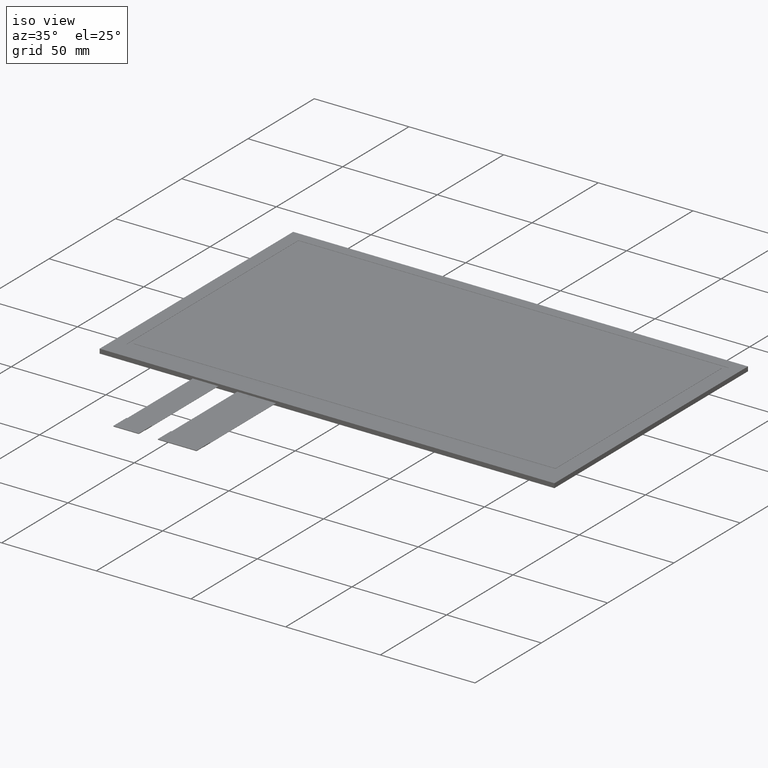
[diagram: clean part render]
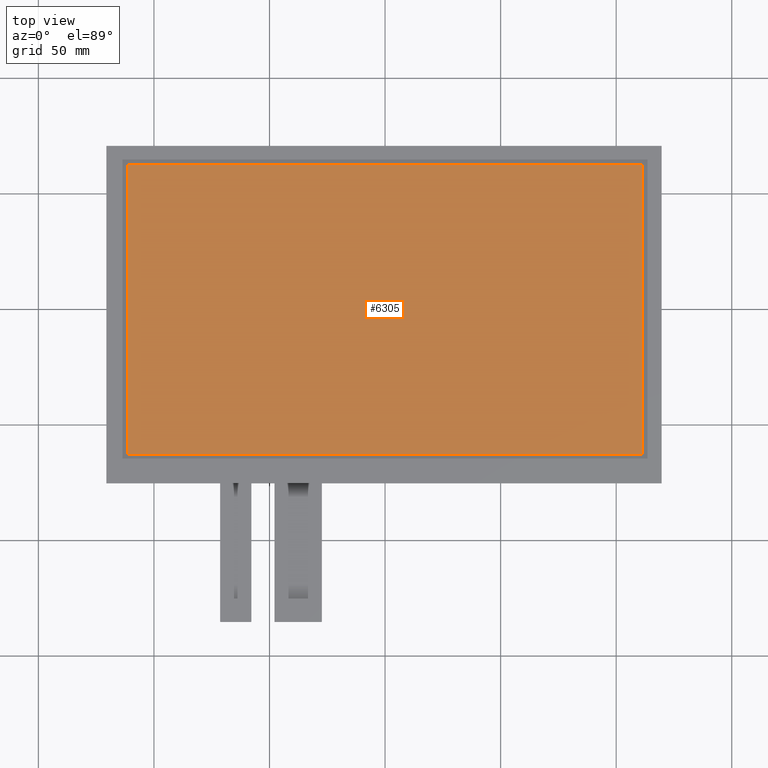
[diagram: tour spotlight — one face highlighted and labeled with its STEP entity id]
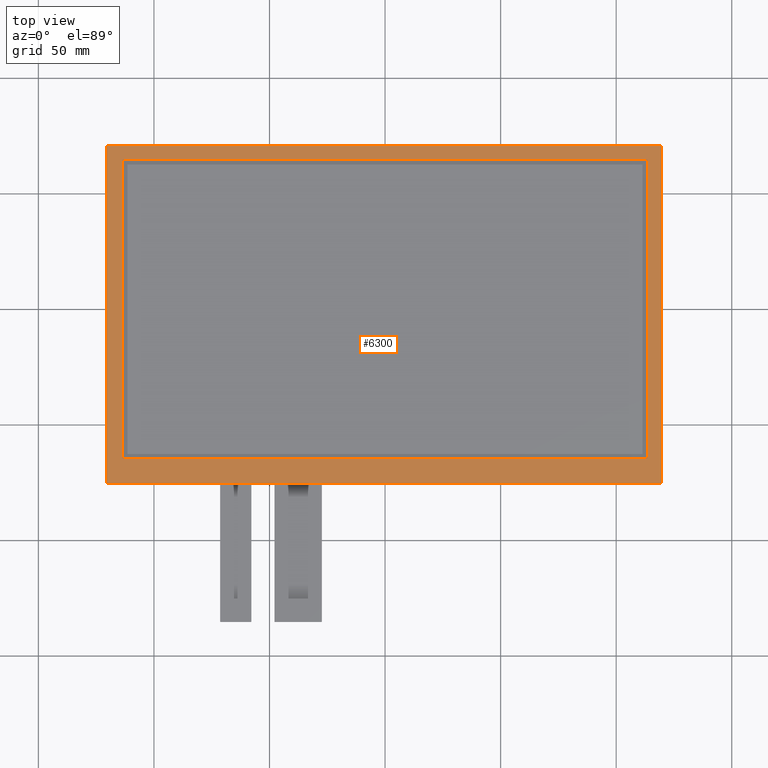
[diagram: tour spotlight — one face highlighted and labeled with its STEP entity id]
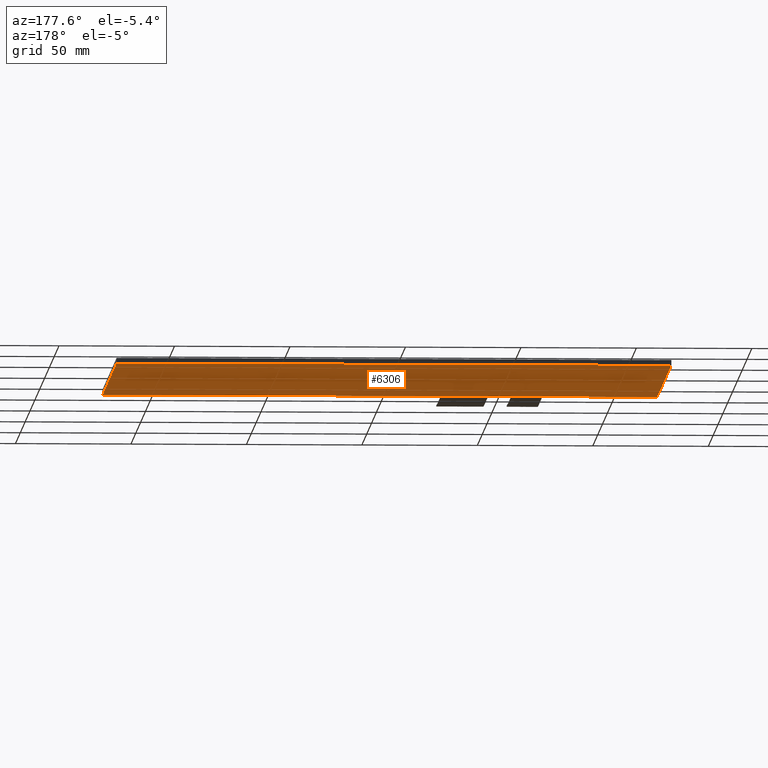
[diagram: tour spotlight — one face highlighted and labeled with its STEP entity id]
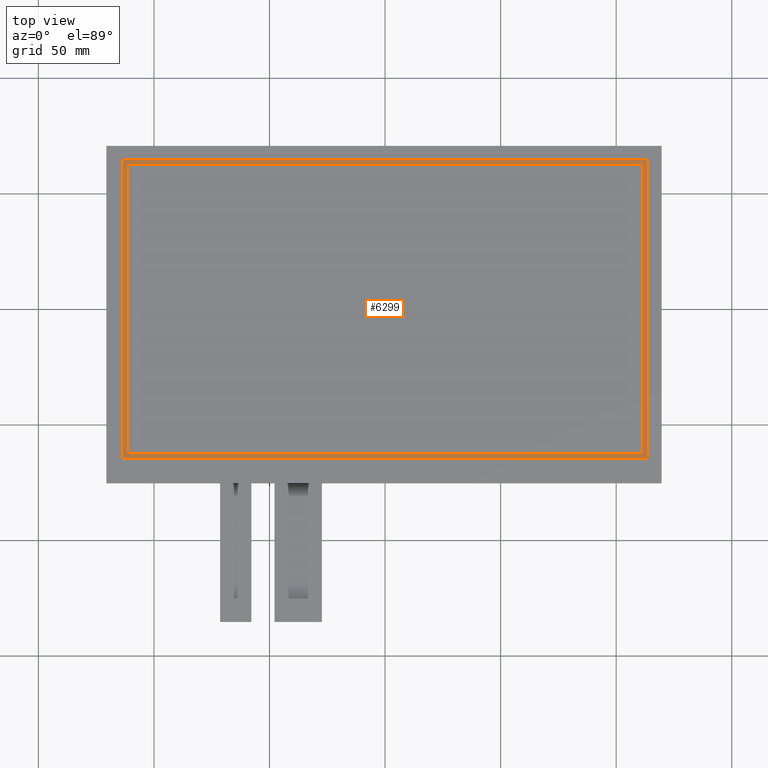
[diagram: tour spotlight — one face highlighted and labeled with its STEP entity id]
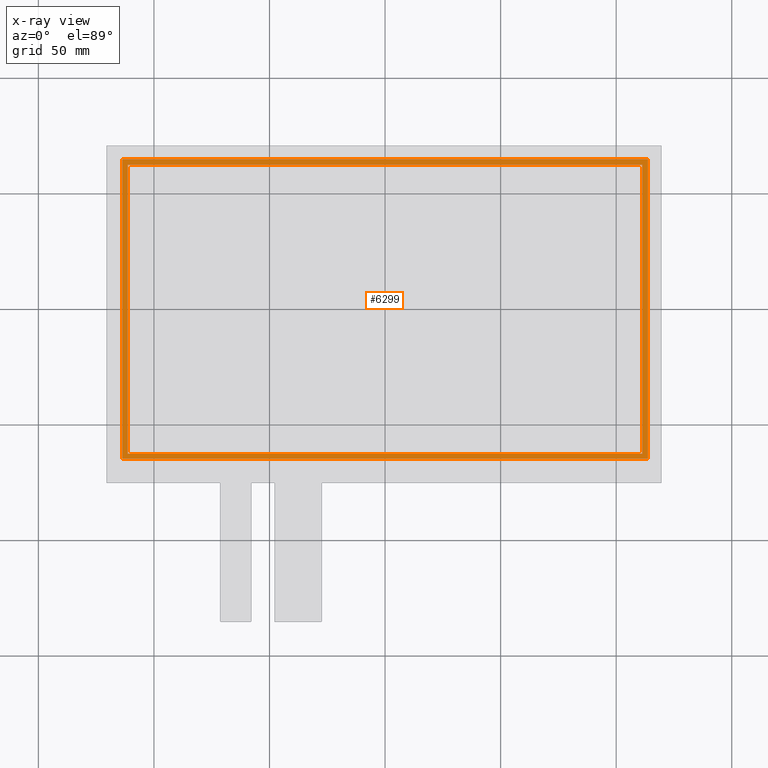
[diagram: x-ray of the same camera — body ghosted, this tour face saturated]
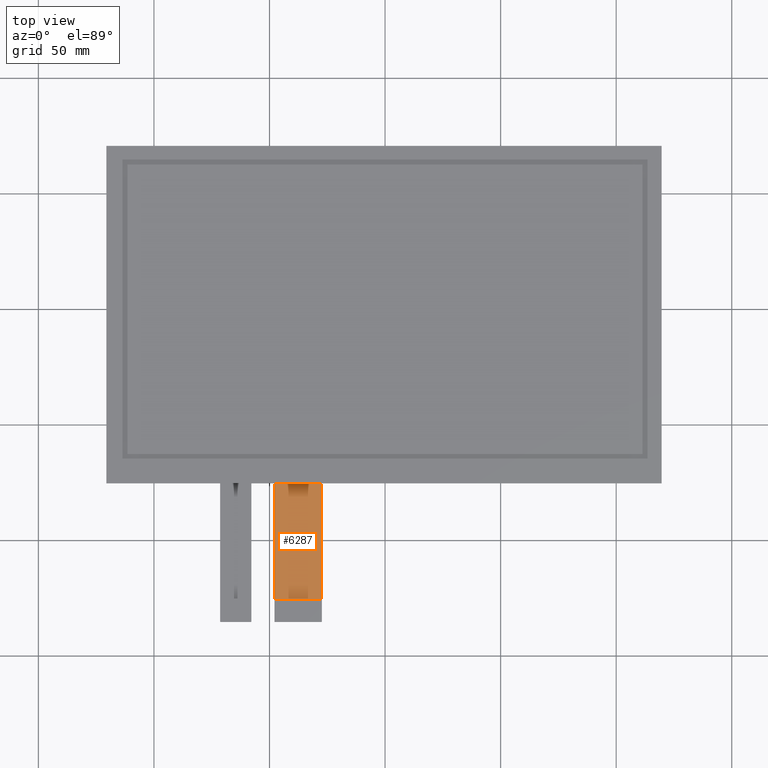
[diagram: tour spotlight — one face highlighted and labeled with its STEP entity id]
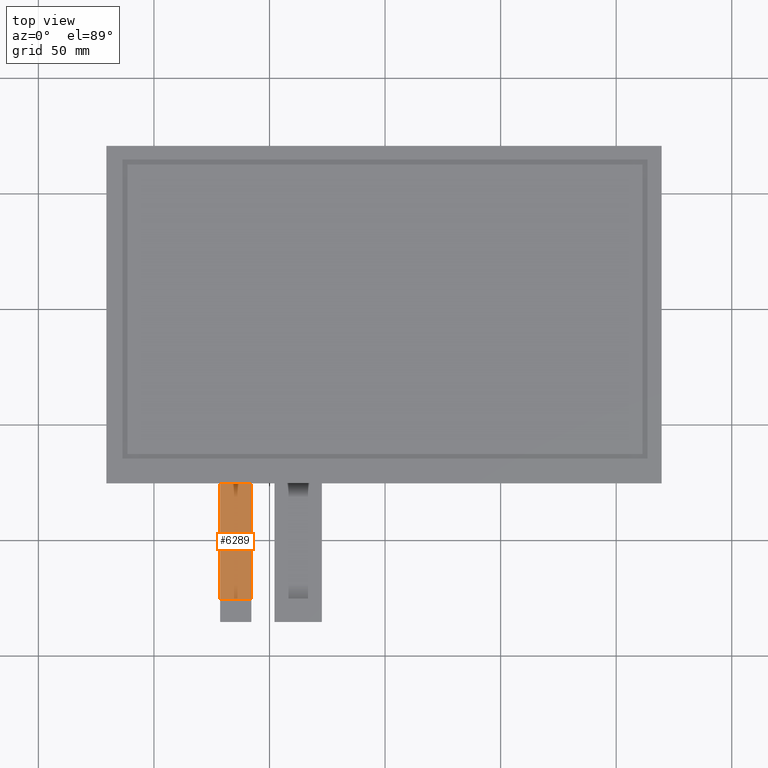
[diagram: tour spotlight — one face highlighted and labeled with its STEP entity id]
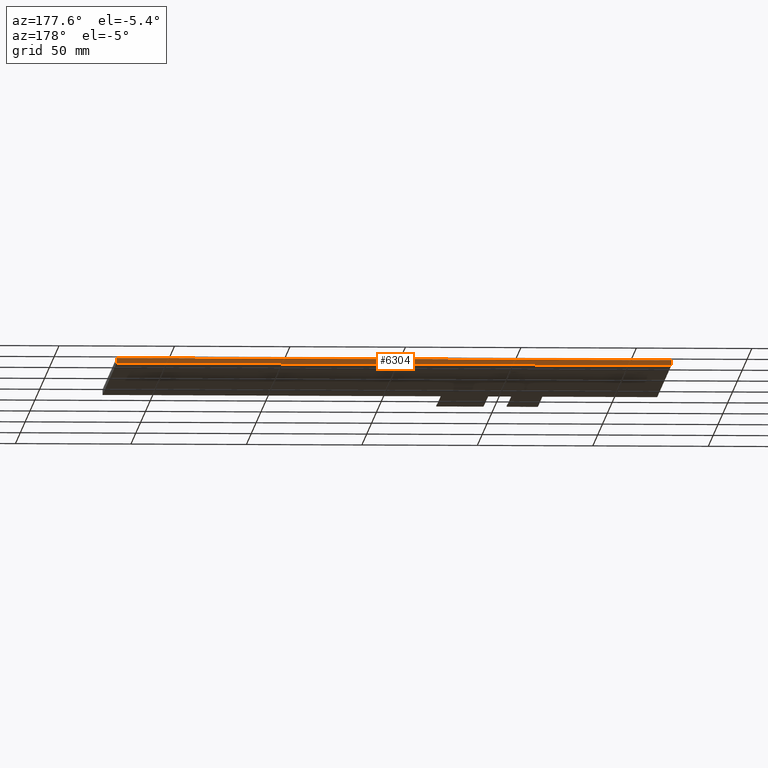
[diagram: tour spotlight — one face highlighted and labeled with its STEP entity id]
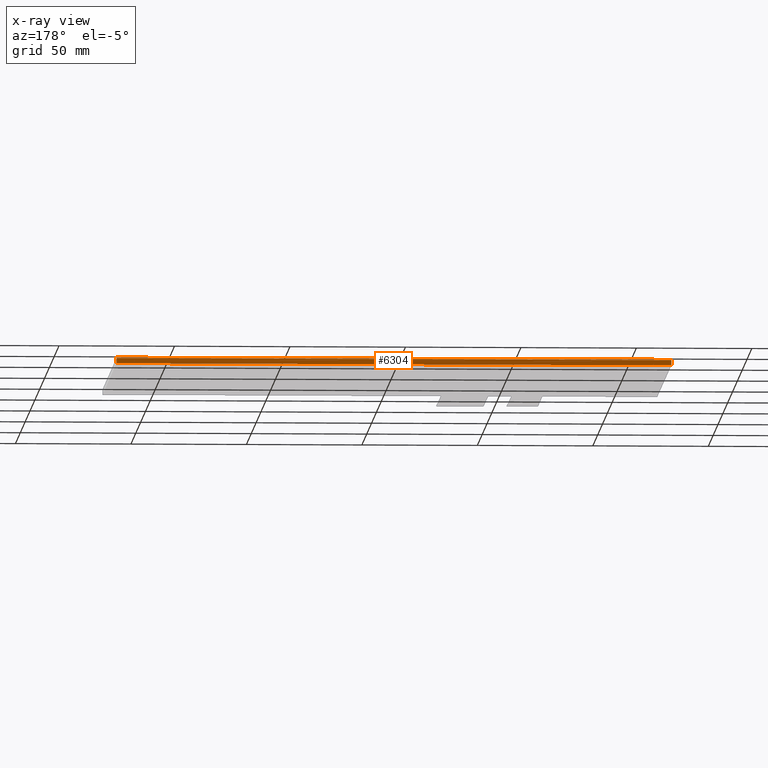
[diagram: x-ray of the same camera — body ghosted, this tour face saturated]
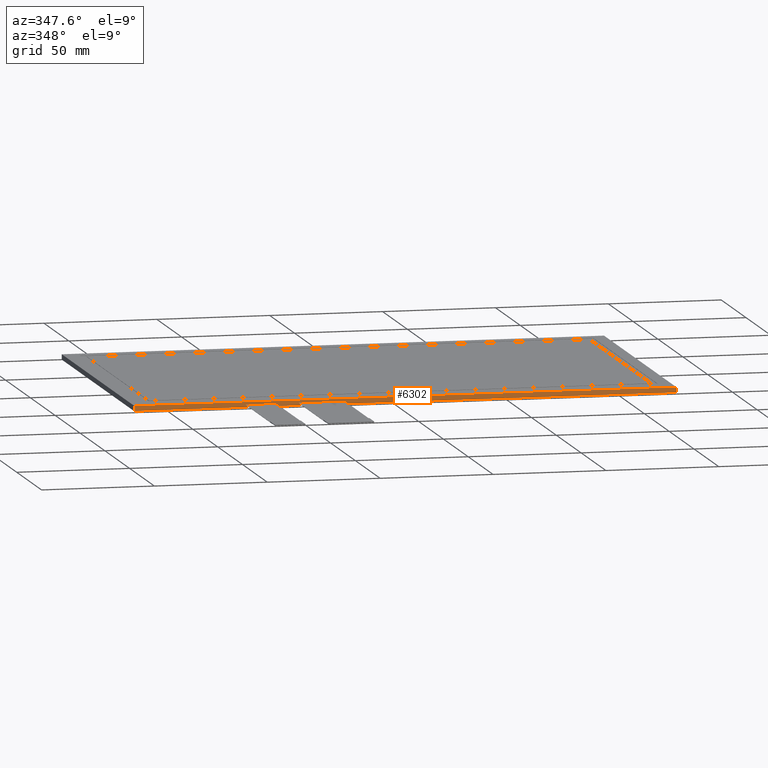
[diagram: tour spotlight — one face highlighted and labeled with its STEP entity id]
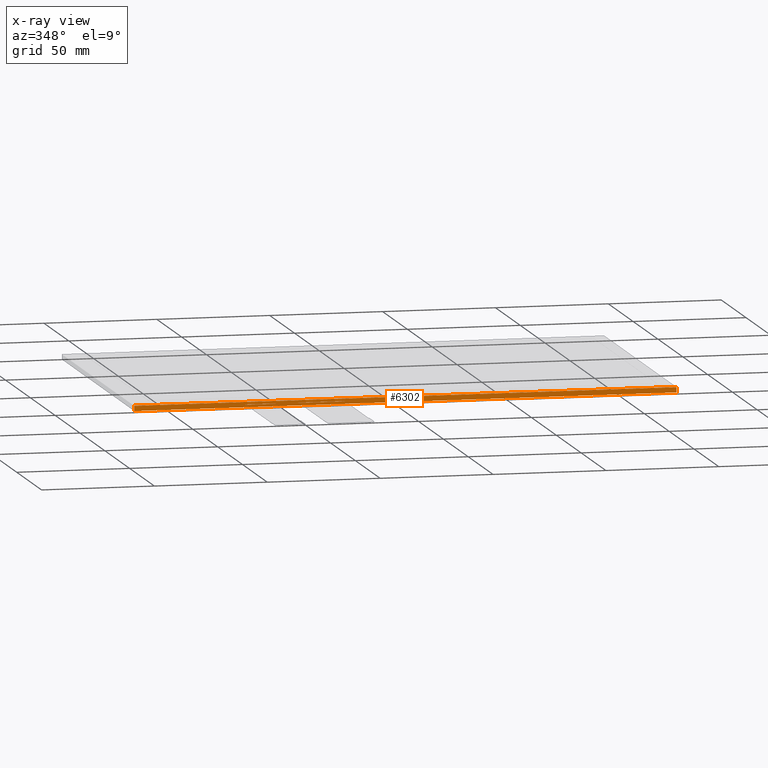
[diagram: x-ray of the same camera — body ghosted, this tour face saturated]
A machine part: a face-by-face anatomy tour. The part has 302 B-rep faces; the first image is the clean iso view, then the 8 largest visible faces are spotlighted one at a time (largest first), each with its STEP entity span.

Face 1 — top view, entity #6305. In plain terms, the highlighted planar face has unit normal (0, 0, 1).
Definition (entity closure, byte-faithful):
#367=PLANE('',#6635);
#669=FACE_OUTER_BOUND('',#975,.T.);
#975=EDGE_LOOP('',(#5993,#5994,#5995,#5996));
#1821=LINE('',#9849,#2701);
#1825=LINE('',#9857,#2705);
#1828=LINE('',#9863,#2708);
#1831=LINE('',#9868,#2711);
#2701=VECTOR('',#8073,10.);
#2705=VECTOR('',#8079,10.);
#2708=VECTOR('',#8084,10.);
#2711=VECTOR('',#8089,10.);
#3313=VERTEX_POINT('',#9847);
#3314=VERTEX_POINT('',#9848);
#3317=VERTEX_POINT('',#9856);
#3319=VERTEX_POINT('',#9862);
#4189=EDGE_CURVE('',#3313,#3314,#1821,.T.);
#4193=EDGE_CURVE('',#3317,#3313,#1825,.T.);
#4196=EDGE_CURVE('',#3319,#3317,#1828,.T.);
#4199=EDGE_CURVE('',#3314,#3319,#1831,.T.);
#5993=ORIENTED_EDGE('',*,*,#4189,.T.);
#5994=ORIENTED_EDGE('',*,*,#4199,.T.);
#5995=ORIENTED_EDGE('',*,*,#4196,.T.);
#5996=ORIENTED_EDGE('',*,*,#4193,.T.);
#6305=ADVANCED_FACE('',(#669),#367,.T.);
#6635=AXIS2_PLACEMENT_3D('',#9920,#8135,#8136);
#8073=DIRECTION('',(1.,0.,0.));
#8079=DIRECTION('',(0.,-1.,0.));
#8084=DIRECTION('',(-1.,0.,0.));
#8089=DIRECTION('',(0.,1.,0.));
#8135=DIRECTION('center_axis',(0.,0.,1.));
#8136=DIRECTION('ref_axis',(1.,0.,0.));
#9847=CARTESIAN_POINT('',(-111.36,-62.64,0.));
#9848=CARTESIAN_POINT('',(111.36,-62.64,0.));
#9849=CARTESIAN_POINT('',(-55.91,-62.64,0.));
#9856=CARTESIAN_POINT('',(-111.36,62.64,0.));
#9857=CARTESIAN_POINT('',(-111.36,30.15,0.));
#9862=CARTESIAN_POINT('',(111.36,62.64,0.));
#9863=CARTESIAN_POINT('',(55.45,62.64,0.));
#9868=CARTESIAN_POINT('',(111.36,-32.49,0.));
#9920=CARTESIAN_POINT('Origin',(-0.460000000000029,-2.34,0.));

Face 2 — top view, entity #6300. In plain terms, the highlighted planar face has unit normal (0, 0, 1).
Definition (entity closure, byte-faithful):
#68=FACE_BOUND('',#968,.T.);
#362=PLANE('',#6630);
#664=FACE_OUTER_BOUND('',#967,.T.);
#967=EDGE_LOOP('',(#5961,#5962,#5963,#5964));
#968=EDGE_LOOP('',(#5965,#5966,#5967,#5968));
#1833=LINE('',#9873,#2713);
#1837=LINE('',#9881,#2717);
#1840=LINE('',#9887,#2720);
#1843=LINE('',#9892,#2723);
#1845=LINE('',#9898,#2725);
#1846=LINE('',#9900,#2726);
#1847=LINE('',#9902,#2727);
#1848=LINE('',#9903,#2728);
#2713=VECTOR('',#8093,10.);
#2717=VECTOR('',#8099,10.);
#2720=VECTOR('',#8104,10.);
#2723=VECTOR('',#8109,10.);
#2725=VECTOR('',#8115,10.);
#2726=VECTOR('',#8116,10.);
#2727=VECTOR('',#8117,10.);
#2728=VECTOR('',#8118,10.);
#3321=VERTEX_POINT('',#9871);
#3322=VERTEX_POINT('',#9872);
#3325=VERTEX_POINT('',#9880);
#3327=VERTEX_POINT('',#9886);
#3329=VERTEX_POINT('',#9896);
#3330=VERTEX_POINT('',#9897);
#3331=VERTEX_POINT('',#9899);
#3332=VERTEX_POINT('',#9901);
#4201=EDGE_CURVE('',#3321,#3322,#1833,.T.);
#4205=EDGE_CURVE('',#3325,#3321,#1837,.T.);
#4208=EDGE_CURVE('',#3327,#3325,#1840,.T.);
#4211=EDGE_CURVE('',#3322,#3327,#1843,.T.);
#4213=EDGE_CURVE('',#3329,#3330,#1845,.T.);
#4214=EDGE_CURVE('',#3330,#3331,#1846,.T.);
#4215=EDGE_CURVE('',#3331,#3332,#1847,.T.);
#4216=EDGE_CURVE('',#3332,#3329,#1848,.T.);
#5961=ORIENTED_EDGE('',*,*,#4213,.T.);
#5962=ORIENTED_EDGE('',*,*,#4214,.T.);
#5963=ORIENTED_EDGE('',*,*,#4215,.T.);
#5964=ORIENTED_EDGE('',*,*,#4216,.T.);
#5965=ORIENTED_EDGE('',*,*,#4201,.T.);
#5966=ORIENTED_EDGE('',*,*,#4211,.T.);
#5967=ORIENTED_EDGE('',*,*,#4208,.T.);
#5968=ORIENTED_EDGE('',*,*,#4205,.T.);
#6300=ADVANCED_FACE('',(#664,#68),#362,.T.);
#6630=AXIS2_PLACEMENT_3D('',#9895,#8113,#8114);
#8093=DIRECTION('',(-1.371704123089E-16,1.,0.));
#8099=DIRECTION('',(-1.,-1.56273145016297E-16,0.));
#8104=DIRECTION('',(1.371704123089E-16,-1.,0.));
#8109=DIRECTION('',(1.,0.,0.));
#8113=DIRECTION('center_axis',(0.,0.,1.));
#8114=DIRECTION('ref_axis',(1.,0.,0.));
#8115=DIRECTION('',(-1.,0.,0.));
#8116=DIRECTION('',(2.433365533425E-16,-1.,0.));
#8117=DIRECTION('',(1.,1.47906481215674E-16,0.));
#8118=DIRECTION('',(0.,1.,0.));
#9871=CARTESIAN_POINT('',(-113.66,-64.74,0.));
#9872=CARTESIAN_POINT('',(-113.66,64.76,0.));
#9873=CARTESIAN_POINT('',(-113.66,-33.54,0.));
#9880=CARTESIAN_POINT('',(113.68,-64.74,0.));
#9881=CARTESIAN_POINT('',(56.61,-64.74,0.));
#9886=CARTESIAN_POINT('',(113.68,64.76,0.));
#9887=CARTESIAN_POINT('',(113.68,31.21,0.));
#9892=CARTESIAN_POINT('',(-57.06,64.76,0.));
#9895=CARTESIAN_POINT('Origin',(-0.460000000000029,-2.34,0.));
#9896=CARTESIAN_POINT('',(119.64,70.66,0.));
#9897=CARTESIAN_POINT('',(-120.56,70.66,0.));
#9898=CARTESIAN_POINT('',(119.64,70.66,0.));
#9899=CARTESIAN_POINT('',(-120.56,-75.34,0.));
#9900=CARTESIAN_POINT('',(-120.56,70.66,0.));
#9901=CARTESIAN_POINT('',(119.64,-75.34,0.));
#9902=CARTESIAN_POINT('',(-120.56,-75.34,0.));
#9903=CARTESIAN_POINT('',(119.64,-75.34,0.));

Face 3 — auxiliary view, entity #6306. In plain terms, the highlighted planar face has unit normal (0, 0, -1).
Definition (entity closure, byte-faithful):
#368=PLANE('',#6636);
#670=FACE_OUTER_BOUND('',#976,.T.);
#976=EDGE_LOOP('',(#5997,#5998,#5999,#6000));
#1850=LINE('',#9908,#2730);
#1852=LINE('',#9912,#2732);
#1854=LINE('',#9916,#2734);
#1856=LINE('',#9919,#2736);
#2730=VECTOR('',#8122,10.);
#2732=VECTOR('',#8126,10.);
#2734=VECTOR('',#8130,10.);
#2736=VECTOR('',#8134,10.);
#3333=VERTEX_POINT('',#9905);
#3334=VERTEX_POINT('',#9907);
#3335=VERTEX_POINT('',#9911);
#3336=VERTEX_POINT('',#9915);
#4218=EDGE_CURVE('',#3334,#3333,#1850,.T.);
#4220=EDGE_CURVE('',#3335,#3334,#1852,.T.);
#4222=EDGE_CURVE('',#3336,#3335,#1854,.T.);
#4224=EDGE_CURVE('',#3333,#3336,#1856,.T.);
#5997=ORIENTED_EDGE('',*,*,#4224,.T.);
#5998=ORIENTED_EDGE('',*,*,#4222,.T.);
#5999=ORIENTED_EDGE('',*,*,#4220,.T.);
#6000=ORIENTED_EDGE('',*,*,#4218,.T.);
#6306=ADVANCED_FACE('',(#670),#368,.T.);
#6636=AXIS2_PLACEMENT_3D('',#9921,#8137,#8138);
#8122=DIRECTION('',(-2.433365533425E-16,1.,0.));
#8126=DIRECTION('',(-1.,-1.47906481215674E-16,0.));
#8130=DIRECTION('',(0.,-1.,0.));
#8134=DIRECTION('',(1.,0.,0.));
#8137=DIRECTION('center_axis',(0.,0.,-1.));
#8138=DIRECTION('ref_axis',(-1.,0.,0.));
#9905=CARTESIAN_POINT('',(-120.56,70.66,-2.35));
#9907=CARTESIAN_POINT('',(-120.56,-75.34,-2.35));
#9908=CARTESIAN_POINT('',(-120.56,70.66,-2.35));
#9911=CARTESIAN_POINT('',(119.64,-75.34,-2.35));
#9912=CARTESIAN_POINT('',(-120.56,-75.34,-2.35));
#9915=CARTESIAN_POINT('',(119.64,70.66,-2.35));
#9916=CARTESIAN_POINT('',(119.64,-75.34,-2.35));
#9919=CARTESIAN_POINT('',(119.64,70.66,-2.35));
#9921=CARTESIAN_POINT('Origin',(-0.460000000000029,-2.34000000000001,-2.35));

Face 4 — top view, entity #6299. An x-ray twin of the same camera follows (body ghosted, this face saturated) — the face is partly hidden behind the body. In plain terms, the highlighted planar face has unit normal (0, 0, -1).
Definition (entity closure, byte-faithful):
#67=FACE_BOUND('',#966,.T.);
#361=PLANE('',#6629);
#663=FACE_OUTER_BOUND('',#965,.T.);
#965=EDGE_LOOP('',(#5953,#5954,#5955,#5956));
#966=EDGE_LOOP('',(#5957,#5958,#5959,#5960));
#1823=LINE('',#9853,#2703);
#1827=LINE('',#9860,#2707);
#1830=LINE('',#9866,#2710);
#1832=LINE('',#9869,#2712);
#1835=LINE('',#9877,#2715);
#1839=LINE('',#9884,#2719);
#1842=LINE('',#9890,#2722);
#1844=LINE('',#9893,#2724);
#2703=VECTOR('',#8075,10.);
#2707=VECTOR('',#8081,10.);
#2710=VECTOR('',#8086,10.);
#2712=VECTOR('',#8090,10.);
#2715=VECTOR('',#8095,10.);
#2719=VECTOR('',#8101,10.);
#2722=VECTOR('',#8106,10.);
#2724=VECTOR('',#8110,10.);
#3315=VERTEX_POINT('',#9850);
#3316=VERTEX_POINT('',#9852);
#3318=VERTEX_POINT('',#9858);
#3320=VERTEX_POINT('',#9864);
#3323=VERTEX_POINT('',#9874);
#3324=VERTEX_POINT('',#9876);
#3326=VERTEX_POINT('',#9882);
#3328=VERTEX_POINT('',#9888);
#4191=EDGE_CURVE('',#3315,#3316,#1823,.T.);
#4195=EDGE_CURVE('',#3318,#3315,#1827,.T.);
#4198=EDGE_CURVE('',#3320,#3318,#1830,.T.);
#4200=EDGE_CURVE('',#3316,#3320,#1832,.T.);
#4203=EDGE_CURVE('',#3323,#3324,#1835,.T.);
#4207=EDGE_CURVE('',#3326,#3323,#1839,.T.);
#4210=EDGE_CURVE('',#3328,#3326,#1842,.T.);
#4212=EDGE_CURVE('',#3324,#3328,#1844,.T.);
#5953=ORIENTED_EDGE('',*,*,#4212,.F.);
#5954=ORIENTED_EDGE('',*,*,#4203,.F.);
#5955=ORIENTED_EDGE('',*,*,#4207,.F.);
#5956=ORIENTED_EDGE('',*,*,#4210,.F.);
#5957=ORIENTED_EDGE('',*,*,#4200,.F.);
#5958=ORIENTED_EDGE('',*,*,#4191,.F.);
#5959=ORIENTED_EDGE('',*,*,#4195,.F.);
#5960=ORIENTED_EDGE('',*,*,#4198,.F.);
#6299=ADVANCED_FACE('',(#663,#67),#361,.F.);
#6629=AXIS2_PLACEMENT_3D('',#9894,#8111,#8112);
#8075=DIRECTION('',(1.,0.,0.));
#8081=DIRECTION('',(0.,-1.,0.));
#8086=DIRECTION('',(-1.,0.,0.));
#8090=DIRECTION('',(0.,1.,0.));
#8095=DIRECTION('',(-1.371704123089E-16,1.,0.));
#8101=DIRECTION('',(-1.,-1.56273145016297E-16,0.));
#8106=DIRECTION('',(1.371704123089E-16,-1.,0.));
#8110=DIRECTION('',(1.,0.,0.));
#8111=DIRECTION('center_axis',(0.,0.,-1.));
#8112=DIRECTION('ref_axis',(-1.,0.,0.));
#9850=CARTESIAN_POINT('',(-111.36,-62.64,-0.1));
#9852=CARTESIAN_POINT('',(111.36,-62.64,-0.1));
#9853=CARTESIAN_POINT('',(111.36,-62.64,-0.1));
#9858=CARTESIAN_POINT('',(-111.36,62.64,-0.1));
#9860=CARTESIAN_POINT('',(-111.36,-62.64,-0.1));
#9864=CARTESIAN_POINT('',(111.36,62.64,-0.1));
#9866=CARTESIAN_POINT('',(-111.36,62.64,-0.1));
#9869=CARTESIAN_POINT('',(111.36,62.64,-0.1));
#9874=CARTESIAN_POINT('',(-113.66,-64.74,-0.1));
#9876=CARTESIAN_POINT('',(-113.66,64.76,-0.1));
#9877=CARTESIAN_POINT('',(-113.66,64.76,-0.1));
#9882=CARTESIAN_POINT('',(113.68,-64.74,-0.1));
#9884=CARTESIAN_POINT('',(-113.66,-64.74,-0.1));
#9888=CARTESIAN_POINT('',(113.68,64.76,-0.1));
#9890=CARTESIAN_POINT('',(113.68,-64.74,-0.1));
#9893=CARTESIAN_POINT('',(113.68,64.76,-0.1));
#9894=CARTESIAN_POINT('Origin',(0.00999999999995893,0.0100000000000033,
-0.1));

Face 5 — top view, entity #6287. In plain terms, the highlighted planar face has unit normal (0, 0, 1).
Definition (entity closure, byte-faithful):
#349=PLANE('',#6617);
#651=FACE_OUTER_BOUND('',#953,.T.);
#953=EDGE_LOOP('',(#5905,#5906,#5907,#5908));
#1272=LINE('',#8750,#2152);
#1810=LINE('',#9826,#2690);
#1813=LINE('',#9831,#2693);
#1817=LINE('',#9839,#2697);
#2152=VECTOR('',#6972,10.);
#2690=VECTOR('',#8044,10.);
#2693=VECTOR('',#8049,10.);
#2697=VECTOR('',#8061,10.);
#3039=VERTEX_POINT('',#8747);
#3040=VERTEX_POINT('',#8749);
#3310=VERTEX_POINT('',#9823);
#3311=VERTEX_POINT('',#9825);
#3640=EDGE_CURVE('',#3040,#3039,#1272,.T.);
#4178=EDGE_CURVE('',#3311,#3310,#1810,.T.);
#4181=EDGE_CURVE('',#3310,#3040,#1813,.T.);
#4185=EDGE_CURVE('',#3311,#3039,#1817,.T.);
#5905=ORIENTED_EDGE('',*,*,#4181,.T.);
#5906=ORIENTED_EDGE('',*,*,#3640,.T.);
#5907=ORIENTED_EDGE('',*,*,#4185,.F.);
#5908=ORIENTED_EDGE('',*,*,#4178,.T.);
#6287=ADVANCED_FACE('',(#651),#349,.T.);
#6617=AXIS2_PLACEMENT_3D('',#9838,#8059,#8060);
#6972=DIRECTION('',(-3.70074341541719E-16,1.,0.));
#8044=DIRECTION('',(1.48029736616688E-16,-1.,0.));
#8049=DIRECTION('',(1.,0.,0.));
#8059=DIRECTION('center_axis',(0.,0.,1.));
#8060=DIRECTION('ref_axis',(1.,0.,0.));
#8061=DIRECTION('',(1.,1.47906481215674E-16,0.));
#8747=CARTESIAN_POINT('',(-27.3599999999999,-75.34,-1.1));
#8749=CARTESIAN_POINT('',(-27.3599999999999,-125.34,-1.1));
#8750=CARTESIAN_POINT('',(-27.3599999999999,-135.34,-1.1));
#9823=CARTESIAN_POINT('',(-47.86,-125.34,-1.1));
#9825=CARTESIAN_POINT('',(-47.86,-75.34,-1.1));
#9826=CARTESIAN_POINT('',(-47.86,-75.34,-1.1));
#9831=CARTESIAN_POINT('',(-32.4849999999999,-125.34,-1.1));
#9838=CARTESIAN_POINT('Origin',(-37.6099999999999,-105.34,-1.1));
#9839=CARTESIAN_POINT('',(41.015,-75.34,-1.1));

Face 6 — top view, entity #6289. In plain terms, the highlighted planar face has unit normal (0, 0, 1).
Definition (entity closure, byte-faithful):
#351=PLANE('',#6619);
#653=FACE_OUTER_BOUND('',#955,.T.);
#955=EDGE_LOOP('',(#5913,#5914,#5915,#5916));
#1094=LINE('',#8385,#1974);
#1803=LINE('',#9812,#2683);
#1815=LINE('',#9835,#2695);
#1819=LINE('',#9843,#2699);
#1974=VECTOR('',#6774,10.);
#2683=VECTOR('',#8033,10.);
#2695=VECTOR('',#8055,10.);
#2699=VECTOR('',#8067,10.);
#2862=VERTEX_POINT('',#8382);
#2863=VERTEX_POINT('',#8384);
#3305=VERTEX_POINT('',#9809);
#3306=VERTEX_POINT('',#9811);
#3458=EDGE_CURVE('',#2863,#2862,#1094,.T.);
#4171=EDGE_CURVE('',#3306,#3305,#1803,.T.);
#4183=EDGE_CURVE('',#3305,#2863,#1815,.T.);
#4187=EDGE_CURVE('',#3306,#2862,#1819,.T.);
#5913=ORIENTED_EDGE('',*,*,#4183,.T.);
#5914=ORIENTED_EDGE('',*,*,#3458,.T.);
#5915=ORIENTED_EDGE('',*,*,#4187,.F.);
#5916=ORIENTED_EDGE('',*,*,#4171,.T.);
#6289=ADVANCED_FACE('',(#653),#351,.T.);
#6619=AXIS2_PLACEMENT_3D('',#9842,#8065,#8066);
#6774=DIRECTION('',(-1.48029736616688E-16,1.,0.));
#8033=DIRECTION('',(5.92118946466751E-16,-1.,0.));
#8055=DIRECTION('',(1.,0.,0.));
#8065=DIRECTION('center_axis',(0.,0.,1.));
#8066=DIRECTION('ref_axis',(1.,0.,0.));
#8067=DIRECTION('',(1.,1.47906481215674E-16,0.));
#8382=CARTESIAN_POINT('',(-57.8599999999999,-75.34,-1.1));
#8384=CARTESIAN_POINT('',(-57.8599999999999,-125.34,-1.1));
#8385=CARTESIAN_POINT('',(-57.8599999999999,-135.34,-1.1));
#9809=CARTESIAN_POINT('',(-71.36,-125.34,-1.1));
#9811=CARTESIAN_POINT('',(-71.36,-75.34,-1.1));
#9812=CARTESIAN_POINT('',(-71.36,-75.34,-1.1));
#9835=CARTESIAN_POINT('',(-61.2349999999999,-125.34,-1.1));
#9842=CARTESIAN_POINT('Origin',(-64.61,-105.34,-1.1));
#9843=CARTESIAN_POINT('',(27.515,-75.34,-1.1));

Face 7 — auxiliary view, entity #6304. An x-ray twin of the same camera follows (body ghosted, this face saturated) — the face is partly hidden behind the body. In plain terms, the highlighted planar face has unit normal (0, 1, 0).
Definition (entity closure, byte-faithful):
#366=PLANE('',#6634);
#668=FACE_OUTER_BOUND('',#974,.T.);
#974=EDGE_LOOP('',(#5989,#5990,#5991,#5992));
#1845=LINE('',#9898,#2725);
#1849=LINE('',#9906,#2729);
#1855=LINE('',#9917,#2735);
#1856=LINE('',#9919,#2736);
#2725=VECTOR('',#8115,10.);
#2729=VECTOR('',#8121,10.);
#2735=VECTOR('',#8131,10.);
#2736=VECTOR('',#8134,10.);
#3329=VERTEX_POINT('',#9896);
#3330=VERTEX_POINT('',#9897);
#3333=VERTEX_POINT('',#9905);
#3336=VERTEX_POINT('',#9915);
#4213=EDGE_CURVE('',#3329,#3330,#1845,.T.);
#4217=EDGE_CURVE('',#3330,#3333,#1849,.T.);
#4223=EDGE_CURVE('',#3329,#3336,#1855,.T.);
#4224=EDGE_CURVE('',#3333,#3336,#1856,.T.);
#5989=ORIENTED_EDGE('',*,*,#4213,.F.);
#5990=ORIENTED_EDGE('',*,*,#4223,.T.);
#5991=ORIENTED_EDGE('',*,*,#4224,.F.);
#5992=ORIENTED_EDGE('',*,*,#4217,.F.);
#6304=ADVANCED_FACE('',(#668),#366,.T.);
#6634=AXIS2_PLACEMENT_3D('',#9918,#8132,#8133);
#8115=DIRECTION('',(-1.,0.,0.));
#8121=DIRECTION('',(0.,0.,-1.));
#8131=DIRECTION('',(0.,0.,-1.));
#8132=DIRECTION('center_axis',(0.,1.,0.));
#8133=DIRECTION('ref_axis',(1.,0.,0.));
#8134=DIRECTION('',(1.,0.,0.));
#9896=CARTESIAN_POINT('',(119.64,70.66,0.));
#9897=CARTESIAN_POINT('',(-120.56,70.66,0.));
#9898=CARTESIAN_POINT('',(119.64,70.66,0.));
#9905=CARTESIAN_POINT('',(-120.56,70.66,-2.35));
#9906=CARTESIAN_POINT('',(-120.56,70.66,0.));
#9915=CARTESIAN_POINT('',(119.64,70.66,-2.35));
#9917=CARTESIAN_POINT('',(119.64,70.66,0.));
#9918=CARTESIAN_POINT('Origin',(-120.56,70.66,0.));
#9919=CARTESIAN_POINT('',(119.64,70.66,-2.35));

Face 8 — auxiliary view, entity #6302. An x-ray twin of the same camera follows (body ghosted, this face saturated) — the face is partly hidden behind the body. In plain terms, the highlighted planar face has unit normal (0, -1, 0).
Definition (entity closure, byte-faithful):
#69=FACE_BOUND('',#971,.T.);
#70=FACE_BOUND('',#972,.T.);
#364=PLANE('',#6632);
#666=FACE_OUTER_BOUND('',#970,.T.);
#970=EDGE_LOOP('',(#5973,#5974,#5975,#5976));
#971=EDGE_LOOP('',(#5977,#5978,#5979,#5980));
#972=EDGE_LOOP('',(#5981,#5982,#5983,#5984));
#1093=LINE('',#8383,#1973);
#1271=LINE('',#8748,#2151);
#1804=LINE('',#9814,#2684);
#1811=LINE('',#9828,#2691);
#1817=LINE('',#9839,#2697);
#1818=LINE('',#9841,#2698);
#1819=LINE('',#9843,#2699);
#1820=LINE('',#9845,#2700);
#1847=LINE('',#9902,#2727);
#1851=LINE('',#9909,#2731);
#1852=LINE('',#9912,#2732);
#1853=LINE('',#9913,#2733);
#1973=VECTOR('',#6773,10.);
#2151=VECTOR('',#6971,10.);
#2684=VECTOR('',#8034,10.);
#2691=VECTOR('',#8045,10.);
#2697=VECTOR('',#8061,10.);
#2698=VECTOR('',#8064,10.);
#2699=VECTOR('',#8067,10.);
#2700=VECTOR('',#8070,10.);
#2727=VECTOR('',#8117,10.);
#2731=VECTOR('',#8123,10.);
#2732=VECTOR('',#8126,10.);
#2733=VECTOR('',#8127,10.);
#2861=VERTEX_POINT('',#8380);
#2862=VERTEX_POINT('',#8382);
#3038=VERTEX_POINT('',#8745);
#3039=VERTEX_POINT('',#8747);
#3306=VERTEX_POINT('',#9811);
#3307=VERTEX_POINT('',#9813);
#3311=VERTEX_POINT('',#9825);
#3312=VERTEX_POINT('',#9827);
#3331=VERTEX_POINT('',#9899);
#3332=VERTEX_POINT('',#9901);
#3334=VERTEX_POINT('',#9907);
#3335=VERTEX_POINT('',#9911);
#3457=EDGE_CURVE('',#2862,#2861,#1093,.T.);
#3639=EDGE_CURVE('',#3039,#3038,#1271,.T.);
#4172=EDGE_CURVE('',#3307,#3306,#1804,.T.);
#4179=EDGE_CURVE('',#3312,#3311,#1811,.T.);
#4185=EDGE_CURVE('',#3311,#3039,#1817,.T.);
#4186=EDGE_CURVE('',#3038,#3312,#1818,.T.);
#4187=EDGE_CURVE('',#3306,#2862,#1819,.T.);
#4188=EDGE_CURVE('',#2861,#3307,#1820,.T.);
#4215=EDGE_CURVE('',#3331,#3332,#1847,.T.);
#4219=EDGE_CURVE('',#3331,#3334,#1851,.T.);
#4220=EDGE_CURVE('',#3335,#3334,#1852,.T.);
#4221=EDGE_CURVE('',#3332,#3335,#1853,.T.);
#5973=ORIENTED_EDGE('',*,*,#4215,.F.);
#5974=ORIENTED_EDGE('',*,*,#4219,.T.);
#5975=ORIENTED_EDGE('',*,*,#4220,.F.);
#5976=ORIENTED_EDGE('',*,*,#4221,.F.);
#5977=ORIENTED_EDGE('',*,*,#3639,.T.);
#5978=ORIENTED_EDGE('',*,*,#4186,.T.);
#5979=ORIENTED_EDGE('',*,*,#4179,.T.);
#5980=ORIENTED_EDGE('',*,*,#4185,.T.);
#5981=ORIENTED_EDGE('',*,*,#3457,.T.);
#5982=ORIENTED_EDGE('',*,*,#4188,.T.);
#5983=ORIENTED_EDGE('',*,*,#4172,.T.);
#5984=ORIENTED_EDGE('',*,*,#4187,.T.);
#6302=ADVANCED_FACE('',(#666,#69,#70),#364,.T.);
#6632=AXIS2_PLACEMENT_3D('',#9910,#8124,#8125);
#6773=DIRECTION('',(0.,0.,-1.));
#6971=DIRECTION('',(0.,0.,-1.));
#8034=DIRECTION('',(0.,0.,1.));
#8045=DIRECTION('',(0.,0.,1.));
#8061=DIRECTION('',(1.,1.47906481215674E-16,0.));
#8064=DIRECTION('',(-1.,-1.47906481215674E-16,0.));
#8067=DIRECTION('',(1.,1.47906481215674E-16,0.));
#8070=DIRECTION('',(-1.,-1.47906481215674E-16,0.));
#8117=DIRECTION('',(1.,1.47906481215674E-16,0.));
#8123=DIRECTION('',(0.,0.,-1.));
#8124=DIRECTION('center_axis',(1.47906481215674E-16,-1.,0.));
#8125=DIRECTION('ref_axis',(-1.,-1.47906481215674E-16,0.));
#8126=DIRECTION('',(-1.,-1.47906481215674E-16,0.));
#8127=DIRECTION('',(0.,0.,-1.));
#8380=CARTESIAN_POINT('',(-57.8599999999999,-75.34,-1.21));
#8382=CARTESIAN_POINT('',(-57.8599999999999,-75.34,-1.1));
#8383=CARTESIAN_POINT('',(-57.8599999999999,-75.34,-0.55));
#8745=CARTESIAN_POINT('',(-27.3599999999999,-75.34,-1.21));
#8747=CARTESIAN_POINT('',(-27.3599999999999,-75.34,-1.1));
#8748=CARTESIAN_POINT('',(-27.3599999999999,-75.34,-0.55));
#9811=CARTESIAN_POINT('',(-71.36,-75.34,-1.1));
#9813=CARTESIAN_POINT('',(-71.36,-75.34,-1.21));
#9814=CARTESIAN_POINT('',(-71.36,-75.34,-0.55));
#9825=CARTESIAN_POINT('',(-47.86,-75.34,-1.1));
#9827=CARTESIAN_POINT('',(-47.86,-75.34,-1.21));
#9828=CARTESIAN_POINT('',(-47.86,-75.34,-0.55));
#9839=CARTESIAN_POINT('',(41.015,-75.34,-1.1));
#9841=CARTESIAN_POINT('',(41.015,-75.34,-1.21));
#9843=CARTESIAN_POINT('',(27.515,-75.34,-1.1));
#9845=CARTESIAN_POINT('',(27.515,-75.34,-1.21));
#9899=CARTESIAN_POINT('',(-120.56,-75.34,0.));
#9901=CARTESIAN_POINT('',(119.64,-75.34,0.));
#9902=CARTESIAN_POINT('',(-120.56,-75.34,0.));
#9907=CARTESIAN_POINT('',(-120.56,-75.34,-2.35));
#9909=CARTESIAN_POINT('',(-120.56,-75.34,0.));
#9910=CARTESIAN_POINT('Origin',(119.64,-75.34,0.));
#9911=CARTESIAN_POINT('',(119.64,-75.34,-2.35));
#9912=CARTESIAN_POINT('',(-120.56,-75.34,-2.35));
#9913=CARTESIAN_POINT('',(119.64,-75.34,0.));